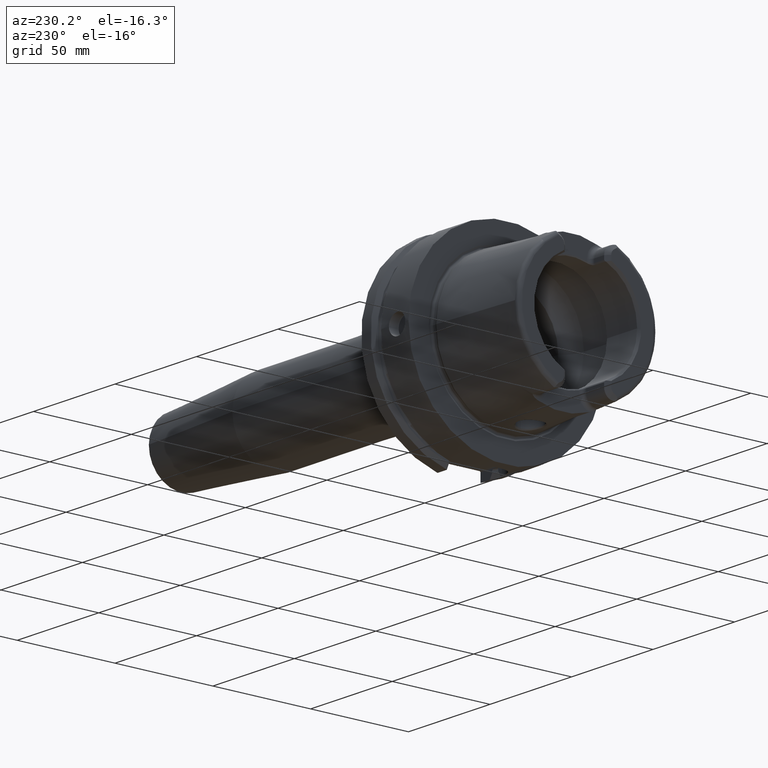
[diagram: clean part render]
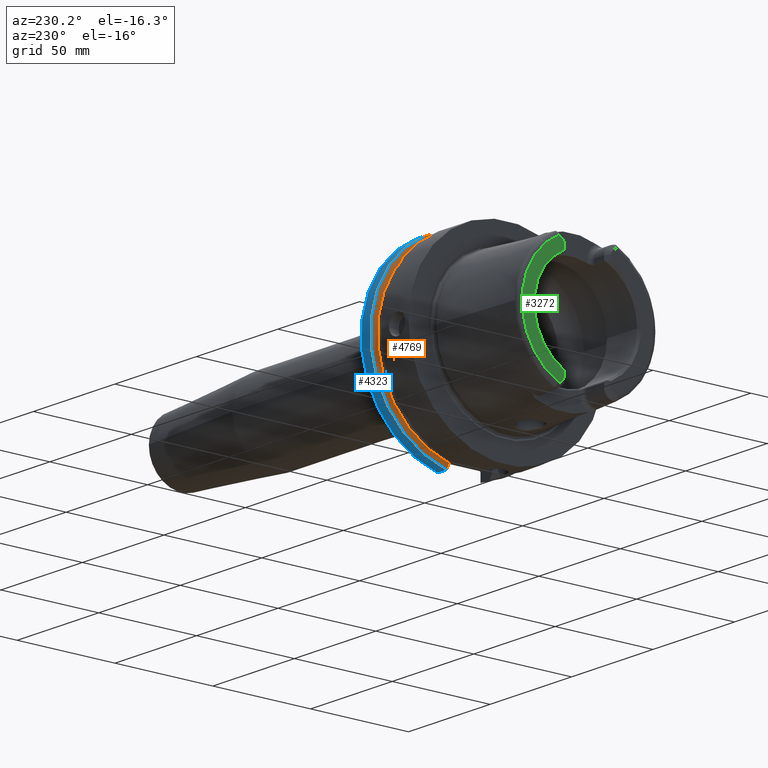
[diagram: same view with three faces highlighted in distinct colors, each labeled with its STEP entity id]
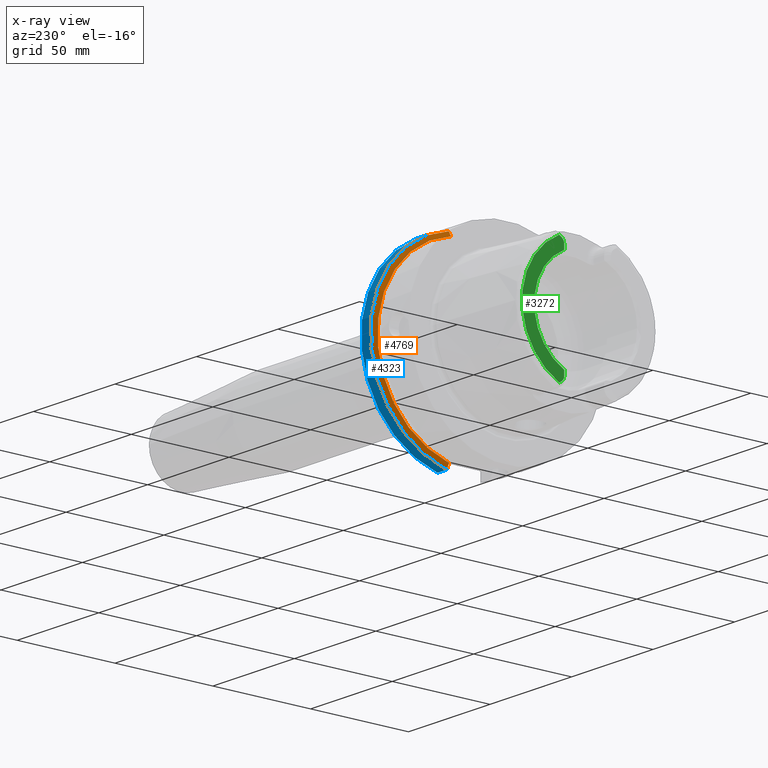
[diagram: x-ray of the same camera — body ghosted, the three highlighted faces saturated]
A machine part, auxiliary view with three faces highlighted in distinct colors.
The next image is the same camera in x-ray (body ghosted, the three faces saturated) — at least one of them is partly hidden behind the body in this view.
Their STEP definitions:

[orange] entity #4769 — the highlighted conical surface has half-angle 60 deg.
#1646=CARTESIAN_POINT('',(2.324759526419E1,1.1E1,-4.877499359303E1));
#1647=CARTESIAN_POINT('',(2.309075618244E1,1.1E1,-4.849651763825E1));
#1648=CARTESIAN_POINT('',(2.277996511889E1,1.1E1,-4.794446101512E1));
#1649=CARTESIAN_POINT('',(2.232251548208E1,1.1E1,-4.713119970766E1));
#1650=CARTESIAN_POINT('',(2.202321854676E1,1.1E1,-4.659863454325E1));
#1651=CARTESIAN_POINT('',(2.1875E1,1.1E1,-4.633477721644E1));
#1653=CARTESIAN_POINT('',(2.324759526419E1,0.E0,0.E0));
#1654=DIRECTION('',(1.E0,0.E0,0.E0));
#1655=DIRECTION('',(0.E0,2.2E-1,-9.754998718606E-1));
#1656=AXIS2_PLACEMENT_3D('',#1653,#1654,#1655);
#1658=CARTESIAN_POINT('',(2.1875E1,1.E1,4.656083740331E1));
#1659=CARTESIAN_POINT('',(2.202341485415E1,1.E1,4.682376142925E1));
#1660=CARTESIAN_POINT('',(2.232297392293E1,1.E1,4.735424823675E1));
#1661=CARTESIAN_POINT('',(2.278043311037E1,1.E1,4.816377318979E1));
#1662=CARTESIAN_POINT('',(2.309095690730E1,1.E1,4.871289474479E1));
#1663=CARTESIAN_POINT('',(2.324759526419E1,1.E1,4.898979485566E1));
#1665=CARTESIAN_POINT('',(2.1875E1,0.E0,0.E0));
#1666=DIRECTION('',(-1.E0,0.E0,0.E0));
#1667=DIRECTION('',(0.E0,2.099843560504E-1,9.777047459300E-1));
#1668=AXIS2_PLACEMENT_3D('',#1665,#1666,#1667);
#3006=CARTESIAN_POINT('',(2.1875E1,1.E1,4.656083740331E1));
#3007=VERTEX_POINT('',#3006);
#3009=VERTEX_POINT('',#1663);
#3018=CARTESIAN_POINT('',(2.324759526419E1,1.1E1,-4.877499359303E1));
#3020=VERTEX_POINT('',#3018);
#3046=CARTESIAN_POINT('',(2.1875E1,1.1E1,-4.633477721644E1));
#3047=VERTEX_POINT('',#3046);
#4757=CARTESIAN_POINT('',(2.256129763210E1,0.E0,0.E0));
#4758=DIRECTION('',(1.E0,0.E0,0.E0));
#4759=DIRECTION('',(0.E0,-1.E0,0.E0));
#4760=AXIS2_PLACEMENT_3D('',#4757,#4758,#4759);
#4761=CONICAL_SURFACE('',#4760,4.881129763210E1,6.E1);
#4762=ORIENTED_EDGE('',*,*,#4388,.F.);
#4763=ORIENTED_EDGE('',*,*,#4319,.T.);
#4765=ORIENTED_EDGE('',*,*,#4764,.F.);
#4766=ORIENTED_EDGE('',*,*,#4721,.T.);
#4767=EDGE_LOOP('',(#4762,#4763,#4765,#4766));
#4768=FACE_OUTER_BOUND('',#4767,.F.);
#4769=ADVANCED_FACE('',(#4768),#4761,.T.);
#1652=B_SPLINE_CURVE_WITH_KNOTS('',3,(#1646,#1647,#1648,#1649,#1650,#1651),
.UNSPECIFIED.,.F.,.F.,(4,1,1,4),(0.E0,3.333333333333E-1,6.666666666667E-1,1.E0),
.UNSPECIFIED.);
#1657=CIRCLE('',#1656,5.E1);
#1664=B_SPLINE_CURVE_WITH_KNOTS('',3,(#1658,#1659,#1660,#1661,#1662,#1663),
.UNSPECIFIED.,.F.,.F.,(4,1,1,4),(0.E0,3.333333333333E-1,6.666666666667E-1,1.E0),
.UNSPECIFIED.);
#1669=CIRCLE('',#1668,4.762259526419E1);
#4319=EDGE_CURVE('',#3020,#3009,#1657,.T.);
#4388=EDGE_CURVE('',#3020,#3047,#1652,.T.);
#4721=EDGE_CURVE('',#3007,#3047,#1669,.T.);
#4764=EDGE_CURVE('',#3007,#3009,#1664,.T.);

[blue] entity #4323 — the highlighted cylindrical surface (partial cylindrical patch) has radius 50 mm, axis along (1, 0, 0).
#1110=DIRECTION('',(1.E0,0.E0,0.E0));
#1111=VECTOR('',#1110,5.752404735808E0);
#1112=CARTESIAN_POINT('',(2.324759526419E1,1.1E1,-4.877499359303E1));
#1113=LINE('',#1112,#1111);
#1114=CARTESIAN_POINT('',(2.9E1,0.E0,0.E0));
#1115=DIRECTION('',(1.E0,0.E0,0.E0));
#1116=DIRECTION('',(0.E0,2.2E-1,-9.754998718606E-1));
#1117=AXIS2_PLACEMENT_3D('',#1114,#1115,#1116);
#1119=DIRECTION('',(1.E0,0.E0,0.E0));
#1120=VECTOR('',#1119,5.752404735808E0);
#1121=CARTESIAN_POINT('',(2.324759526419E1,1.E1,4.898979485566E1));
#1122=LINE('',#1121,#1120);
#1653=CARTESIAN_POINT('',(2.324759526419E1,0.E0,0.E0));
#1654=DIRECTION('',(1.E0,0.E0,0.E0));
#1655=DIRECTION('',(0.E0,2.2E-1,-9.754998718606E-1));
#1656=AXIS2_PLACEMENT_3D('',#1653,#1654,#1655);
#1663=CARTESIAN_POINT('',(2.324759526419E1,1.E1,4.898979485566E1));
#3009=VERTEX_POINT('',#1663);
#3018=CARTESIAN_POINT('',(2.324759526419E1,1.1E1,-4.877499359303E1));
#3019=CARTESIAN_POINT('',(2.9E1,1.1E1,-4.877499359303E1));
#3020=VERTEX_POINT('',#3018);
#3021=VERTEX_POINT('',#3019);
#3064=CARTESIAN_POINT('',(2.9E1,1.E1,4.898979485566E1));
#3065=VERTEX_POINT('',#3064);
#4309=CARTESIAN_POINT('',(-5.395E1,0.E0,0.E0));
#4310=DIRECTION('',(1.E0,0.E0,0.E0));
#4311=DIRECTION('',(0.E0,-1.E0,0.E0));
#4312=AXIS2_PLACEMENT_3D('',#4309,#4310,#4311);
#4313=CYLINDRICAL_SURFACE('',#4312,5.E1);
#4315=ORIENTED_EDGE('',*,*,#4314,.T.);
#4316=ORIENTED_EDGE('',*,*,#4258,.T.);
#4318=ORIENTED_EDGE('',*,*,#4317,.F.);
#4320=ORIENTED_EDGE('',*,*,#4319,.F.);
#4321=EDGE_LOOP('',(#4315,#4316,#4318,#4320));
#4322=FACE_OUTER_BOUND('',#4321,.F.);
#4323=ADVANCED_FACE('',(#4322),#4313,.T.);
#1118=CIRCLE('',#1117,5.E1);
#1657=CIRCLE('',#1656,5.E1);
#4258=EDGE_CURVE('',#3021,#3065,#1118,.T.);
#4314=EDGE_CURVE('',#3020,#3021,#1113,.T.);
#4317=EDGE_CURVE('',#3009,#3065,#1122,.T.);
#4319=EDGE_CURVE('',#3020,#3009,#1657,.T.);

[green] entity #3272 — the highlighted planar face has unit normal (1, 0, 0).
#100=DIRECTION('',(0.E0,0.E0,1.E0));
#101=VECTOR('',#100,2.370180025047E0);
#102=CARTESIAN_POINT('',(-5.E1,1.201E1,-2.696E1));
#103=LINE('',#102,#101);
#104=CARTESIAN_POINT('',(-5.E1,1.501E1,-2.696E1));
#105=DIRECTION('',(1.E0,0.E0,0.E0));
#106=DIRECTION('',(0.E0,-1.E0,0.E0));
#107=AXIS2_PLACEMENT_3D('',#104,#105,#106);
#109=DIRECTION('',(0.E0,-8.533905854017E-1,5.212720103245E-1));
#110=VECTOR('',#109,1.392150953463E0);
#111=CARTESIAN_POINT('',(-5.E1,1.463423248617E1,-3.024586108239E1));
#112=LINE('',#111,#110);
#113=DIRECTION('',(0.E0,-8.533905854017E-1,-5.212720103245E-1));
#114=VECTOR('',#113,1.392150953463E0);
#115=CARTESIAN_POINT('',(-5.E1,1.463423248617E1,3.024586108239E1));
#116=LINE('',#115,#114);
#117=CARTESIAN_POINT('',(-5.E1,1.501E1,2.696E1));
#118=DIRECTION('',(-1.E0,0.E0,0.E0));
#119=DIRECTION('',(0.E0,-1.E0,0.E0));
#120=AXIS2_PLACEMENT_3D('',#117,#118,#119);
#122=DIRECTION('',(0.E0,0.E0,1.E0));
#123=VECTOR('',#122,2.370180025047E0);
#124=CARTESIAN_POINT('',(-5.E1,1.201E1,2.458981997495E1));
#125=LINE('',#124,#123);
#157=CARTESIAN_POINT('',(-5.E1,0.E0,0.E0));
#158=DIRECTION('',(1.E0,0.E0,0.E0));
#159=DIRECTION('',(0.E0,4.388653384185E-1,-8.985528447091E-1));
#160=AXIS2_PLACEMENT_3D('',#157,#158,#159);
#340=CARTESIAN_POINT('',(-5.E1,0.E0,0.E0));
#341=DIRECTION('',(-1.E0,0.E0,0.E0));
#342=DIRECTION('',(0.E0,4.355401503799E-1,9.001693048572E-1));
#343=AXIS2_PLACEMENT_3D('',#340,#341,#342);
#2803=CARTESIAN_POINT('',(-5.E1,1.201E1,2.458981997495E1));
#2804=CARTESIAN_POINT('',(-5.E1,1.201E1,2.696E1));
#2805=VERTEX_POINT('',#2803);
#2806=VERTEX_POINT('',#2804);
#2807=CARTESIAN_POINT('',(-5.E1,1.344618396903E1,2.952017175621E1));
#2808=VERTEX_POINT('',#2807);
#2809=CARTESIAN_POINT('',(-5.E1,1.463423248617E1,3.024586108239E1));
#2810=VERTEX_POINT('',#2809);
#2894=CARTESIAN_POINT('',(-5.E1,1.201E1,-2.696E1));
#2895=CARTESIAN_POINT('',(-5.E1,1.201E1,-2.458981997495E1));
#2896=VERTEX_POINT('',#2894);
#2897=VERTEX_POINT('',#2895);
#2898=CARTESIAN_POINT('',(-5.E1,1.344618396903E1,-2.952017175621E1));
#2899=VERTEX_POINT('',#2898);
#2900=CARTESIAN_POINT('',(-5.E1,1.463423248617E1,-3.024586108239E1));
#2901=VERTEX_POINT('',#2900);
#3249=CARTESIAN_POINT('',(-5.E1,0.E0,0.E0));
#3250=DIRECTION('',(1.E0,0.E0,0.E0));
#3251=DIRECTION('',(0.E0,-1.E0,0.E0));
#3252=AXIS2_PLACEMENT_3D('',#3249,#3250,#3251);
#3253=PLANE('',#3252);
#3255=ORIENTED_EDGE('',*,*,#3254,.F.);
#3257=ORIENTED_EDGE('',*,*,#3256,.T.);
#3259=ORIENTED_EDGE('',*,*,#3258,.F.);
#3261=ORIENTED_EDGE('',*,*,#3260,.F.);
#3263=ORIENTED_EDGE('',*,*,#3262,.T.);
#3265=ORIENTED_EDGE('',*,*,#3264,.F.);
#3267=ORIENTED_EDGE('',*,*,#3266,.F.);
#3269=ORIENTED_EDGE('',*,*,#3268,.F.);
#3270=EDGE_LOOP('',(#3255,#3257,#3259,#3261,#3263,#3265,#3267,#3269));
#3271=FACE_OUTER_BOUND('',#3270,.F.);
#3272=ADVANCED_FACE('',(#3271),#3253,.F.);
#108=CIRCLE('',#107,3.E0);
#121=CIRCLE('',#120,3.E0);
#161=CIRCLE('',#160,2.736602540378E1);
#344=CIRCLE('',#343,3.360019156306E1);
#3254=EDGE_CURVE('',#2896,#2897,#103,.T.);
#3256=EDGE_CURVE('',#2896,#2899,#108,.T.);
#3258=EDGE_CURVE('',#2901,#2899,#112,.T.);
#3260=EDGE_CURVE('',#2810,#2901,#344,.T.);
#3262=EDGE_CURVE('',#2810,#2808,#116,.T.);
#3264=EDGE_CURVE('',#2806,#2808,#121,.T.);
#3266=EDGE_CURVE('',#2805,#2806,#125,.T.);
#3268=EDGE_CURVE('',#2897,#2805,#161,.T.);